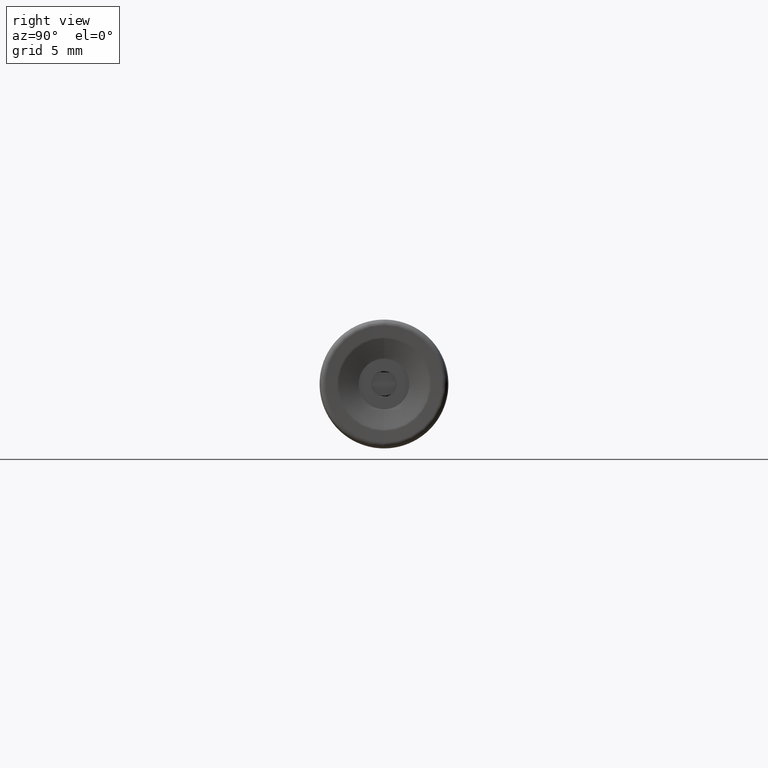
[diagram: clean part render]
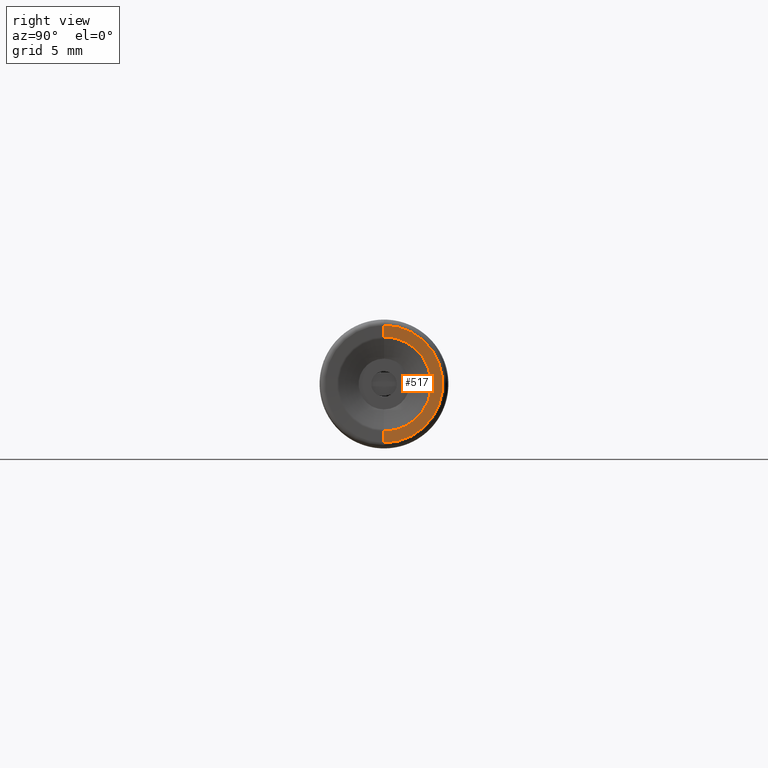
[diagram: same view with one face highlighted and labeled with its STEP entity id]
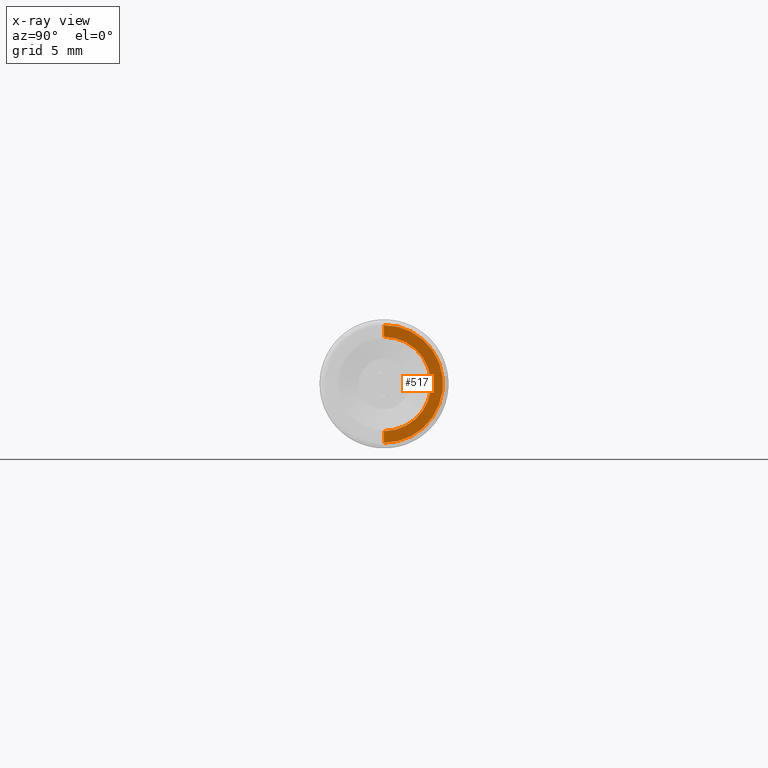
[diagram: x-ray of the same camera — body ghosted, the highlighted face saturated]
A machine part, right view. The second image highlights one B-rep face of the part: STEP entity #517.
The next image is the same camera in x-ray: the body ghosted, the highlighted face saturated — about 0% of this face is hidden behind the body in this view.
In plain terms, the highlighted conical surface has half-angle 88.225 deg.
Its self-contained STEP definition (entity closure, byte-faithful):
#6 = CARTESIAN_POINT ( 'NONE',  ( 0.4998094004053947300, 0.0000000000000000000, -4.567777955433021100 ) ) ;
#62 = EDGE_LOOP ( 'NONE', ( #803, #795, #785, #790 ) ) ;
#69 = CARTESIAN_POINT ( 'NONE',  ( 0.4998094004053947300, 5.844652674829954900E-016, 4.567777955433021100 ) ) ;
#70 = CARTESIAN_POINT ( 'NONE',  ( 0.4717211606841920100, 0.0000000000000000000, -3.661327496907250500 ) ) ;
#72 = CARTESIAN_POINT ( 'NONE',  ( 0.4717211606841920100, 4.483832999717654800E-016, 3.661327496907250500 ) ) ;
#101 = VERTEX_POINT ( 'NONE', #6 ) ;
#104 = VERTEX_POINT ( 'NONE', #69 ) ;
#106 = VERTEX_POINT ( 'NONE', #70 ) ;
#107 = VERTEX_POINT ( 'NONE', #72 ) ;
#517 = ADVANCED_FACE ( 'NONE', ( #2018 ), #636, .F. ) ;
#601 = AXIS2_PLACEMENT_3D ( 'NONE', #2252, #2253, #2254 ) ;
#615 = CIRCLE ( 'NONE', #601, 3.661327496907250900 ) ;
#636 = CONICAL_SURFACE ( 'NONE', #641, 4.567777955433021100, 1.539819173504007200 ) ;
#641 = AXIS2_PLACEMENT_3D ( 'NONE', #2022, #2023, #2020 ) ;
#774 = EDGE_CURVE ( 'NONE', #106, #107, #615, .T. ) ;
#785 = ORIENTED_EDGE ( 'NONE', *, *, #2517, .T. ) ;
#790 = ORIENTED_EDGE ( 'NONE', *, *, #2511, .T. ) ;
#795 = ORIENTED_EDGE ( 'NONE', *, *, #774, .F. ) ;
#803 = ORIENTED_EDGE ( 'NONE', *, *, #2523, .F. ) ;
#2018 = FACE_OUTER_BOUND ( 'NONE', #62, .T. ) ;
#2020 = DIRECTION ( 'NONE',  ( 0.0000000000000000000, 0.0000000000000000000, -1.000000000000000000 ) ) ;
#2022 = CARTESIAN_POINT ( 'NONE',  ( 0.4998094004053947300, 0.0000000000000000000, 0.0000000000000000000 ) ) ;
#2023 = DIRECTION ( 'NONE',  ( 1.000000000000000000, -0.0000000000000000000, -0.0000000000000000000 ) ) ;
#2252 = CARTESIAN_POINT ( 'NONE',  ( 0.4717211606841919500, 0.0000000000000000000, 0.0000000000000000000 ) ) ;
#2253 = DIRECTION ( 'NONE',  ( 1.000000000000000000, -0.0000000000000000000, -0.0000000000000000000 ) ) ;
#2254 = DIRECTION ( 'NONE',  ( 0.0000000000000000000, 0.0000000000000000000, -1.000000000000000000 ) ) ;
#2380 = CARTESIAN_POINT ( 'NONE',  ( 0.4998094004053947300, 0.0000000000000000000, 0.0000000000000000000 ) ) ;
#2381 = DIRECTION ( 'NONE',  ( 1.000000000000000000, -0.0000000000000000000, -0.0000000000000000000 ) ) ;
#2382 = DIRECTION ( 'NONE',  ( 0.0000000000000000000, 0.0000000000000000000, -1.000000000000000000 ) ) ;
#2386 = LINE ( 'NONE', #2394, #2494 ) ;
#2394 = CARTESIAN_POINT ( 'NONE',  ( 0.4998094004053947300, 0.0000000000000000000, -4.567777955433021100 ) ) ;
#2403 = DIRECTION ( 'NONE',  ( 0.03097219933167087700, 0.0000000000000000000, -0.9995202463524985900 ) ) ;
#2420 = LINE ( 'NONE', #2421, #2500 ) ;
#2421 = CARTESIAN_POINT ( 'NONE',  ( 0.4998094004053947300, 5.593914652336890400E-016, 4.567777955433021100 ) ) ;
#2422 = DIRECTION ( 'NONE',  ( 0.03097219933167087700, 1.224059270378561400E-016, 0.9995202463524985900 ) ) ;
#2480 = CIRCLE ( 'NONE', #2487, 4.567777955433021100 ) ;
#2487 = AXIS2_PLACEMENT_3D ( 'NONE', #2380, #2381, #2382 ) ;
#2494 = VECTOR ( 'NONE', #2403, 999.9999999999998900 ) ;
#2500 = VECTOR ( 'NONE', #2422, 999.9999999999998900 ) ;
#2511 = EDGE_CURVE ( 'NONE', #101, #104, #2480, .T. ) ;
#2517 = EDGE_CURVE ( 'NONE', #106, #101, #2386, .T. ) ;
#2523 = EDGE_CURVE ( 'NONE', #107, #104, #2420, .T. ) ;